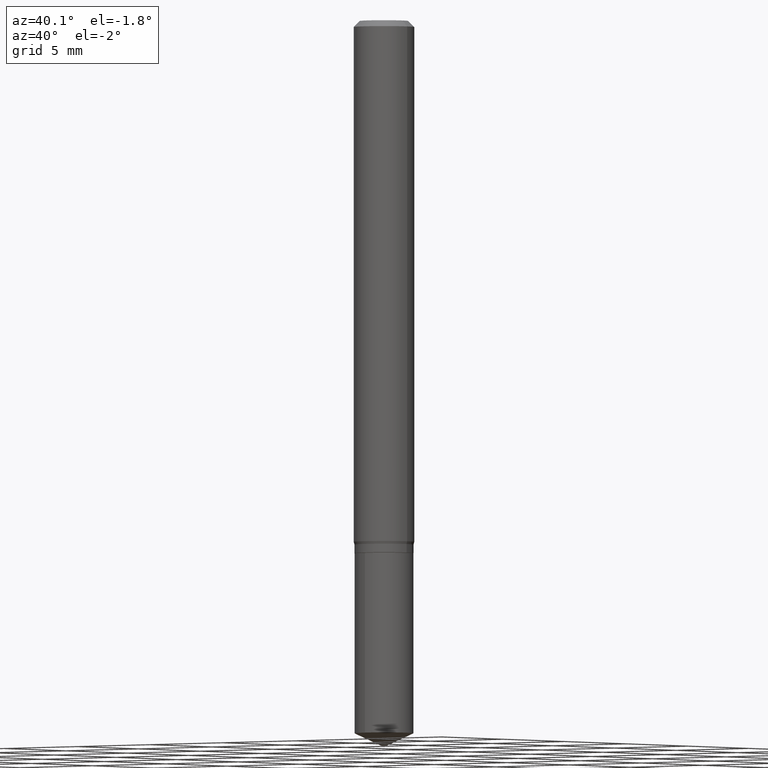
[diagram: clean part render]
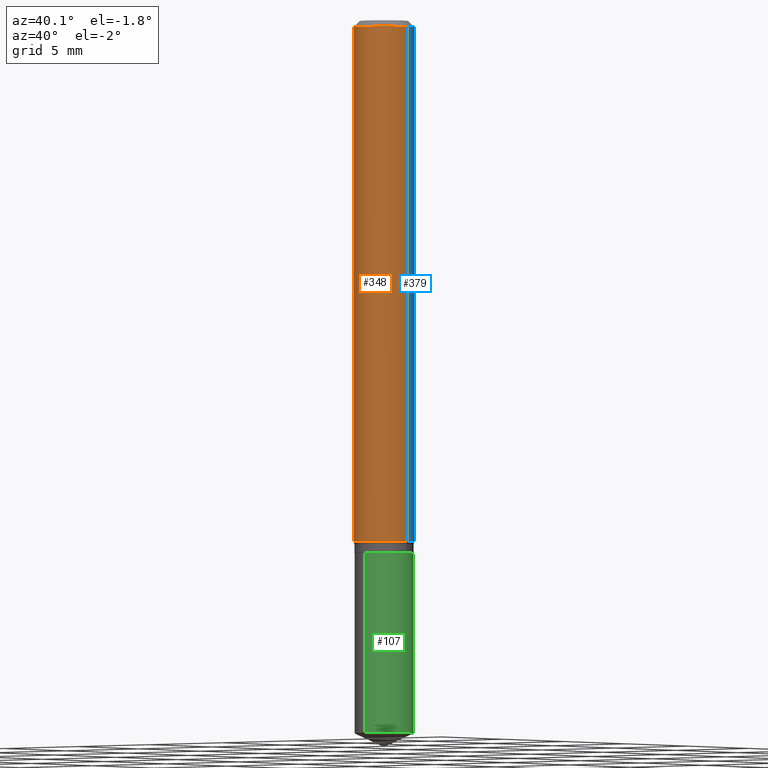
[diagram: same view with three faces highlighted in distinct colors, each labeled with its STEP entity id]
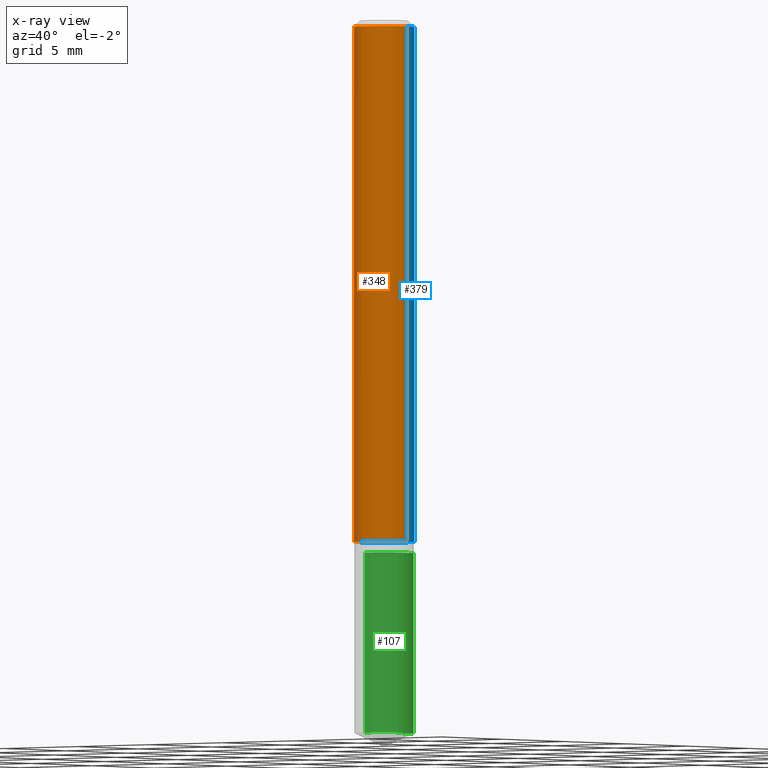
[diagram: x-ray of the same camera — body ghosted, the three highlighted faces saturated]
A machine part, auxiliary view with three faces highlighted in distinct colors.
The next image is the same camera in x-ray (body ghosted, the three faces saturated) — at least one of them is partly hidden behind the body in this view.
Their STEP definitions:

[orange] entity #348 — the highlighted cylindrical surface (edge-blend (fillet) strip) has radius 1.5875 mm, axis along (-0, 0, 1).
#8 = CARTESIAN_POINT ( 'NONE',  ( -0.06250000000000000000, -1.456327441318339620E-15, -0.01250000000000008049 ) ) ;
#10 = EDGE_CURVE ( 'NONE', #96, #66, #38, .T. ) ;
#38 = CIRCLE ( 'NONE', #72, 0.06250000000000000000 ) ;
#66 = VERTEX_POINT ( 'NONE', #308 ) ;
#72 = AXIS2_PLACEMENT_3D ( 'NONE', #219, #331, #108 ) ;
#74 = EDGE_LOOP ( 'NONE', ( #323, #409, #289, #291 ) ) ;
#84 = EDGE_CURVE ( 'NONE', #402, #96, #156, .T. ) ;
#96 = VERTEX_POINT ( 'NONE', #8 ) ;
#108 = DIRECTION ( 'NONE',  ( 1.000000000000000000, -6.982962677686266711E-15, 0.000000000000000000 ) ) ;
#109 = CYLINDRICAL_SURFACE ( 'NONE', #480, 0.06250000000000006939 ) ;
#133 = DIRECTION ( 'NONE',  ( -2.445468806185136597E-29, 3.491481338843145583E-15, 1.000000000000000000 ) ) ;
#142 = AXIS2_PLACEMENT_3D ( 'NONE', #206, #133, #322 ) ;
#156 = LINE ( 'NONE', #264, #230 ) ;
#177 = VECTOR ( 'NONE', #464, 39.37007874015748143 ) ;
#206 = CARTESIAN_POINT ( 'NONE',  ( 2.631573686900949883E-29, -3.757189785601267277E-15, -1.076101923788646220 ) ) ;
#219 = CARTESIAN_POINT ( 'NONE',  ( 3.056836007731440539E-31, -4.364351673553960451E-17, -0.01250000000000008049 ) ) ;
#224 = FACE_OUTER_BOUND ( 'NONE', #74, .T. ) ;
#230 = VECTOR ( 'NONE', #454, 39.37007874015748143 ) ;
#233 = EDGE_CURVE ( 'NONE', #402, #319, #399, .T. ) ;
#260 = CARTESIAN_POINT ( 'NONE',  ( 0.000000000000000000, 0.000000000000000000, 0.000000000000000000 ) ) ;
#264 = CARTESIAN_POINT ( 'NONE',  ( -0.06250000000000006939, 4.440892098500631092E-16, -3.074334431409319267E-30 ) ) ;
#289 = ORIENTED_EDGE ( 'NONE', *, *, #484, .T. ) ;
#291 = ORIENTED_EDGE ( 'NONE', *, *, #10, .F. ) ;
#307 = DIRECTION ( 'NONE',  ( -2.445468806185136597E-29, 3.491481338843145583E-15, 1.000000000000000000 ) ) ;
#308 = CARTESIAN_POINT ( 'NONE',  ( 0.06250000000000000000, -4.800786840909312308E-16, -0.01250000000000008049 ) ) ;
#309 = CARTESIAN_POINT ( 'NONE',  ( 0.06250000000000006939, -4.364351673553921624E-16, 3.047610484872463374E-30 ) ) ;
#319 = VERTEX_POINT ( 'NONE', #354 ) ;
#322 = DIRECTION ( 'NONE',  ( 1.000000000000000000, -6.982962677686264344E-15, 0.000000000000000000 ) ) ;
#323 = ORIENTED_EDGE ( 'NONE', *, *, #84, .F. ) ;
#331 = DIRECTION ( 'NONE',  ( -2.445468806185136597E-29, 3.491481338843145583E-15, 1.000000000000000000 ) ) ;
#348 = ADVANCED_FACE ( 'NONE', ( #224 ), #109, .T. ) ;
#354 = CARTESIAN_POINT ( 'NONE',  ( 0.06250000000000012490, -4.193624952956660524E-15, -1.076101923788646220 ) ) ;
#399 = CIRCLE ( 'NONE', #142, 0.06250000000000012490 ) ;
#402 = VERTEX_POINT ( 'NONE', #411 ) ;
#409 = ORIENTED_EDGE ( 'NONE', *, *, #233, .T. ) ;
#411 = CARTESIAN_POINT ( 'NONE',  ( -0.06250000000000012490, -3.313100575751204266E-15, -1.076101923788646220 ) ) ;
#418 = LINE ( 'NONE', #309, #177 ) ;
#454 = DIRECTION ( 'NONE',  ( -2.445468806185136877E-29, 3.491481338843145188E-15, 1.000000000000000000 ) ) ;
#464 = DIRECTION ( 'NONE',  ( -2.445468806185136877E-29, 3.491481338843145188E-15, 1.000000000000000000 ) ) ;
#480 = AXIS2_PLACEMENT_3D ( 'NONE', #260, #307, #489 ) ;
#484 = EDGE_CURVE ( 'NONE', #319, #66, #418, .T. ) ;
#489 = DIRECTION ( 'NONE',  ( 1.000000000000000000, -6.982962677686266711E-15, 4.876176775795935793E-29 ) ) ;

[blue] entity #379 — the highlighted cylindrical surface (edge-blend (fillet) strip) has radius 1.5875 mm, axis along (-0, 0, 1).
#8 = CARTESIAN_POINT ( 'NONE',  ( -0.06250000000000000000, -1.456327441318339620E-15, -0.01250000000000008049 ) ) ;
#36 = CARTESIAN_POINT ( 'NONE',  ( 0.000000000000000000, 0.000000000000000000, 0.000000000000000000 ) ) ;
#60 = ORIENTED_EDGE ( 'NONE', *, *, #397, .F. ) ;
#66 = VERTEX_POINT ( 'NONE', #308 ) ;
#73 = DIRECTION ( 'NONE',  ( -2.445468806185136597E-29, 3.491481338843145583E-15, 1.000000000000000000 ) ) ;
#84 = EDGE_CURVE ( 'NONE', #402, #96, #156, .T. ) ;
#96 = VERTEX_POINT ( 'NONE', #8 ) ;
#98 = ORIENTED_EDGE ( 'NONE', *, *, #258, .T. ) ;
#102 = AXIS2_PLACEMENT_3D ( 'NONE', #36, #483, #453 ) ;
#134 = CIRCLE ( 'NONE', #153, 0.06250000000000000000 ) ;
#153 = AXIS2_PLACEMENT_3D ( 'NONE', #299, #73, #265 ) ;
#154 = FACE_OUTER_BOUND ( 'NONE', #262, .T. ) ;
#156 = LINE ( 'NONE', #264, #230 ) ;
#172 = DIRECTION ( 'NONE',  ( -2.445468806185136597E-29, 3.491481338843145583E-15, 1.000000000000000000 ) ) ;
#177 = VECTOR ( 'NONE', #464, 39.37007874015748143 ) ;
#230 = VECTOR ( 'NONE', #454, 39.37007874015748143 ) ;
#258 = EDGE_CURVE ( 'NONE', #319, #402, #340, .T. ) ;
#262 = EDGE_LOOP ( 'NONE', ( #98, #476, #60, #362 ) ) ;
#264 = CARTESIAN_POINT ( 'NONE',  ( -0.06250000000000006939, 4.440892098500631092E-16, -3.074334431409319267E-30 ) ) ;
#265 = DIRECTION ( 'NONE',  ( 1.000000000000000000, -6.982962677686266711E-15, 0.000000000000000000 ) ) ;
#285 = CARTESIAN_POINT ( 'NONE',  ( 2.631573686900949883E-29, -3.757189785601267277E-15, -1.076101923788646220 ) ) ;
#299 = CARTESIAN_POINT ( 'NONE',  ( 3.056836007731440539E-31, -4.364351673553960451E-17, -0.01250000000000008049 ) ) ;
#308 = CARTESIAN_POINT ( 'NONE',  ( 0.06250000000000000000, -4.800786840909312308E-16, -0.01250000000000008049 ) ) ;
#309 = CARTESIAN_POINT ( 'NONE',  ( 0.06250000000000006939, -4.364351673553921624E-16, 3.047610484872463374E-30 ) ) ;
#319 = VERTEX_POINT ( 'NONE', #354 ) ;
#340 = CIRCLE ( 'NONE', #457, 0.06250000000000012490 ) ;
#344 = CYLINDRICAL_SURFACE ( 'NONE', #102, 0.06250000000000006939 ) ;
#354 = CARTESIAN_POINT ( 'NONE',  ( 0.06250000000000012490, -4.193624952956660524E-15, -1.076101923788646220 ) ) ;
#362 = ORIENTED_EDGE ( 'NONE', *, *, #484, .F. ) ;
#379 = ADVANCED_FACE ( 'NONE', ( #154 ), #344, .T. ) ;
#394 = DIRECTION ( 'NONE',  ( 1.000000000000000000, -6.982962677686264344E-15, 0.000000000000000000 ) ) ;
#397 = EDGE_CURVE ( 'NONE', #66, #96, #134, .T. ) ;
#402 = VERTEX_POINT ( 'NONE', #411 ) ;
#411 = CARTESIAN_POINT ( 'NONE',  ( -0.06250000000000012490, -3.313100575751204266E-15, -1.076101923788646220 ) ) ;
#418 = LINE ( 'NONE', #309, #177 ) ;
#453 = DIRECTION ( 'NONE',  ( 1.000000000000000000, -6.982962677686266711E-15, 4.876176775795935793E-29 ) ) ;
#454 = DIRECTION ( 'NONE',  ( -2.445468806185136877E-29, 3.491481338843145188E-15, 1.000000000000000000 ) ) ;
#457 = AXIS2_PLACEMENT_3D ( 'NONE', #285, #172, #394 ) ;
#464 = DIRECTION ( 'NONE',  ( -2.445468806185136877E-29, 3.491481338843145188E-15, 1.000000000000000000 ) ) ;
#476 = ORIENTED_EDGE ( 'NONE', *, *, #84, .T. ) ;
#483 = DIRECTION ( 'NONE',  ( -2.445468806185136597E-29, 3.491481338843145583E-15, 1.000000000000000000 ) ) ;
#484 = EDGE_CURVE ( 'NONE', #319, #66, #418, .T. ) ;

[green] entity #107 — the highlighted cylindrical surface (edge-blend (fillet) strip) has radius 1.5494 mm, axis along (-0, 0, 1).
#18 = EDGE_CURVE ( 'NONE', #478, #445, #466, .T. ) ;
#33 = DIRECTION ( 'NONE',  ( -6.982962677686265922E-15, -1.000000000000000000, 4.478439333875842027E-15 ) ) ;
#47 = CIRCLE ( 'NONE', #237, 0.06099999999999999173 ) ;
#49 = DIRECTION ( 'NONE',  ( -2.445399690415121810E-29, 3.491580316559632610E-15, 1.000000000000000000 ) ) ;
#55 = EDGE_LOOP ( 'NONE', ( #469, #127, #405, #139 ) ) ;
#107 = ADVANCED_FACE ( 'NONE', ( #487 ), #422, .T. ) ;
#112 = CARTESIAN_POINT ( 'NONE',  ( 4.334310688136970464E-16, 0.06099999999999615452, -1.100000000000000311 ) ) ;
#121 = CARTESIAN_POINT ( 'NONE',  ( -4.259607233388352844E-16, -0.06100000000000383588, -1.099999999999999645 ) ) ;
#127 = ORIENTED_EDGE ( 'NONE', *, *, #369, .T. ) ;
#139 = ORIENTED_EDGE ( 'NONE', *, *, #477, .F. ) ;
#140 = VERTEX_POINT ( 'NONE', #490 ) ;
#144 = CARTESIAN_POINT ( 'NONE',  ( 2.690015686803650369E-29, -3.840629472727460101E-15, -1.100000000000000089 ) ) ;
#148 = DIRECTION ( 'NONE',  ( -2.445399690415121810E-29, 3.491580316559632610E-15, 1.000000000000000000 ) ) ;
#151 = DIRECTION ( 'NONE',  ( -6.982962677686265922E-15, -1.000000000000000000, 4.478439333875842027E-15 ) ) ;
#170 = DIRECTION ( 'NONE',  ( -6.982962677686265922E-15, -1.000000000000000000, 4.478439333875842027E-15 ) ) ;
#171 = VERTEX_POINT ( 'NONE', #229 ) ;
#191 = LINE ( 'NONE', #376, #383 ) ;
#193 = DIRECTION ( 'NONE',  ( -2.445399690415121530E-29, 3.491580316559632610E-15, 1.000000000000000000 ) ) ;
#200 = AXIS2_PLACEMENT_3D ( 'NONE', #424, #193, #151 ) ;
#214 = EDGE_CURVE ( 'NONE', #171, #140, #47, .T. ) ;
#229 = CARTESIAN_POINT ( 'NONE',  ( -4.259607233388263111E-16, -0.06100000000000515427, -1.471555232852544970 ) ) ;
#237 = AXIS2_PLACEMENT_3D ( 'NONE', #463, #276, #170 ) ;
#276 = DIRECTION ( 'NONE',  ( -2.445399690415121530E-29, 3.491580316559632610E-15, 1.000000000000000000 ) ) ;
#279 = AXIS2_PLACEMENT_3D ( 'NONE', #144, #296, #33 ) ;
#296 = DIRECTION ( 'NONE',  ( -2.445399690415121530E-29, 3.491580316559632610E-15, 1.000000000000000000 ) ) ;
#336 = CARTESIAN_POINT ( 'NONE',  ( -4.259607233388352844E-16, -0.06100000000000383588, -1.099999999999999645 ) ) ;
#369 = EDGE_CURVE ( 'NONE', #140, #445, #191, .T. ) ;
#372 = LINE ( 'NONE', #336, #410 ) ;
#376 = CARTESIAN_POINT ( 'NONE',  ( 4.334310688136878759E-16, 0.06099999999999615452, -1.100000000000000311 ) ) ;
#383 = VECTOR ( 'NONE', #148, 39.37007874015748143 ) ;
#405 = ORIENTED_EDGE ( 'NONE', *, *, #18, .F. ) ;
#410 = VECTOR ( 'NONE', #49, 39.37007874015748143 ) ;
#422 = CYLINDRICAL_SURFACE ( 'NONE', #200, 0.06099999999999999173 ) ;
#424 = CARTESIAN_POINT ( 'NONE',  ( 2.690015686803650369E-29, -3.840629472727460101E-15, -1.100000000000000089 ) ) ;
#445 = VERTEX_POINT ( 'NONE', #112 ) ;
#463 = CARTESIAN_POINT ( 'NONE',  ( 3.598616738193382173E-29, -5.137944410270138335E-15, -1.471555232852545414 ) ) ;
#466 = CIRCLE ( 'NONE', #279, 0.06099999999999999173 ) ;
#469 = ORIENTED_EDGE ( 'NONE', *, *, #214, .T. ) ;
#477 = EDGE_CURVE ( 'NONE', #171, #478, #372, .T. ) ;
#478 = VERTEX_POINT ( 'NONE', #121 ) ;
#487 = FACE_OUTER_BOUND ( 'NONE', #55, .T. ) ;
#490 = CARTESIAN_POINT ( 'NONE',  ( 4.334310688136970464E-16, 0.06099999999999486389, -1.471555232852545636 ) ) ;